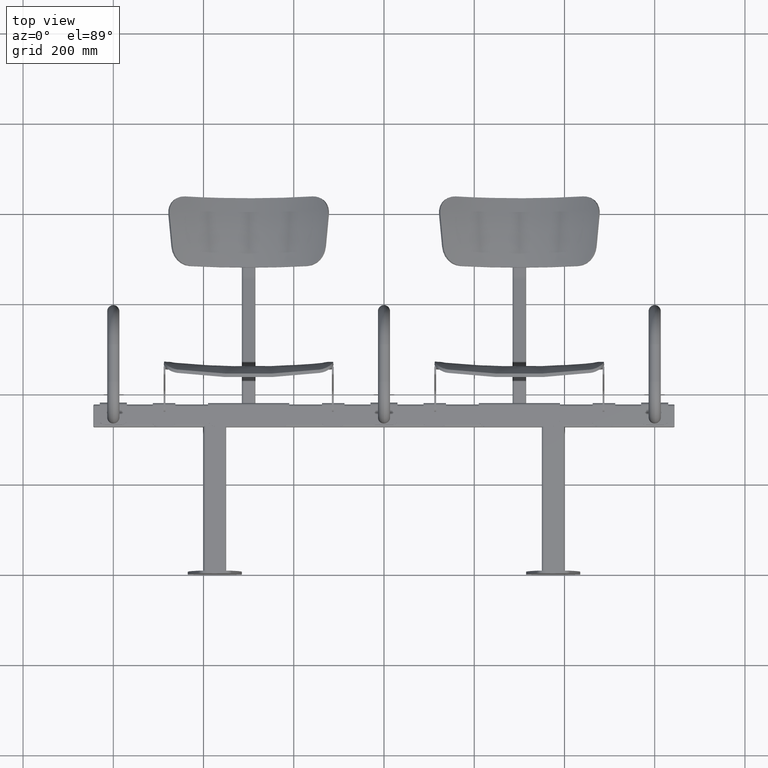
[diagram: clean part render]
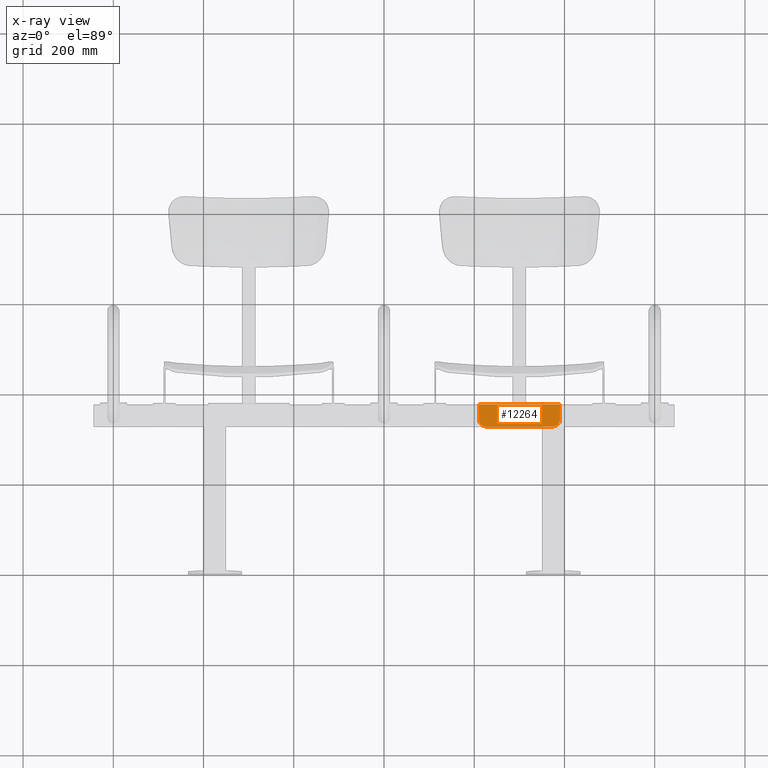
[diagram: x-ray — body ghosted, one internal face saturated and labeled with its STEP entity id]
A machine part, top view, then the same camera in x-ray: the body is ghosted and one INTERNAL B-rep face — a face not visible from any outside direction — is saturated and labeled: STEP entity #12264.
In plain terms, the highlighted planar face has unit normal (0, 0, 1).
Its self-contained STEP definition (entity closure, byte-faithful):
#73 = EDGE_LOOP ( 'NONE', ( #11106, #11097, #11098, #11101, #11102, #11099 ) ) ;
#318 = CARTESIAN_POINT ( 'NONE',  ( 90.00000000000000000, 14.99999999999999800, 0.0000000000000000000 ) ) ;
#332 = CARTESIAN_POINT ( 'NONE',  ( 90.00000000000000000, 49.00000000000000000, 0.0000000000000000000 ) ) ;
#351 = CARTESIAN_POINT ( 'NONE',  ( -90.00000000000000000, 49.00000000000000000, 0.0000000000000000000 ) ) ;
#353 = CARTESIAN_POINT ( 'NONE',  ( -74.99999999999992900, 0.0000000000000000000, 0.0000000000000000000 ) ) ;
#356 = CARTESIAN_POINT ( 'NONE',  ( -90.00000000000000000, 14.99999999999999800, 0.0000000000000000000 ) ) ;
#427 = VERTEX_POINT ( 'NONE', #318 ) ;
#441 = VERTEX_POINT ( 'NONE', #332 ) ;
#460 = VERTEX_POINT ( 'NONE', #351 ) ;
#462 = VERTEX_POINT ( 'NONE', #353 ) ;
#465 = VERTEX_POINT ( 'NONE', #356 ) ;
#5024 = FACE_OUTER_BOUND ( 'NONE', #73, .T. ) ;
#7894 = VERTEX_POINT ( 'NONE', #16534 ) ;
#10603 = AXIS2_PLACEMENT_3D ( 'NONE', #17709, #17714, #17715 ) ;
#11097 = ORIENTED_EDGE ( 'NONE', *, *, #12456, .T. ) ;
#11098 = ORIENTED_EDGE ( 'NONE', *, *, #12452, .T. ) ;
#11099 = ORIENTED_EDGE ( 'NONE', *, *, #12468, .F. ) ;
#11101 = ORIENTED_EDGE ( 'NONE', *, *, #12462, .T. ) ;
#11102 = ORIENTED_EDGE ( 'NONE', *, *, #12463, .T. ) ;
#11106 = ORIENTED_EDGE ( 'NONE', *, *, #12455, .F. ) ;
#12264 = ADVANCED_FACE ( 'NONE', ( #5024 ), #17707, .F. ) ;
#12452 = EDGE_CURVE ( 'NONE', #7894, #462, #18537, .T. ) ;
#12455 = EDGE_CURVE ( 'NONE', #427, #441, #18543, .T. ) ;
#12456 = EDGE_CURVE ( 'NONE', #427, #7894, #18545, .T. ) ;
#12462 = EDGE_CURVE ( 'NONE', #462, #465, #18555, .T. ) ;
#12463 = EDGE_CURVE ( 'NONE', #465, #460, #18556, .T. ) ;
#12468 = EDGE_CURVE ( 'NONE', #441, #460, #18563, .T. ) ;
#16534 = CARTESIAN_POINT ( 'NONE',  ( 75.00000000000000000, 0.0000000000000000000, 0.0000000000000000000 ) ) ;
#17707 = PLANE ( 'NONE',  #10603 ) ;
#17709 = CARTESIAN_POINT ( 'NONE',  ( 90.00000000000000000, 0.0000000000000000000, 0.0000000000000000000 ) ) ;
#17714 = DIRECTION ( 'NONE',  ( 0.0000000000000000000, 0.0000000000000000000, 1.000000000000000000 ) ) ;
#17715 = DIRECTION ( 'NONE',  ( 1.000000000000000000, 0.0000000000000000000, -0.0000000000000000000 ) ) ;
#17862 = AXIS2_PLACEMENT_3D ( 'NONE', #19006, #19007, #19008 ) ;
#17865 = AXIS2_PLACEMENT_3D ( 'NONE', #19019, #19020, #19021 ) ;
#18537 = LINE ( 'NONE', #18996, #18540 ) ;
#18540 = VECTOR ( 'NONE', #18998, 1000.000000000000000 ) ;
#18543 = LINE ( 'NONE', #19002, #18546 ) ;
#18545 = CIRCLE ( 'NONE', #17862, 15.00000000000000000 ) ;
#18546 = VECTOR ( 'NONE', #19003, 1000.000000000000000 ) ;
#18555 = CIRCLE ( 'NONE', #17865, 15.00000000000000000 ) ;
#18556 = LINE ( 'NONE', #19014, #18558 ) ;
#18558 = VECTOR ( 'NONE', #19015, 1000.000000000000000 ) ;
#18563 = LINE ( 'NONE', #19034, #18566 ) ;
#18566 = VECTOR ( 'NONE', #19036, 1000.000000000000000 ) ;
#18996 = CARTESIAN_POINT ( 'NONE',  ( 90.00000000000000000, 0.0000000000000000000, 0.0000000000000000000 ) ) ;
#18998 = DIRECTION ( 'NONE',  ( -1.000000000000000000, -0.0000000000000000000, -0.0000000000000000000 ) ) ;
#19002 = CARTESIAN_POINT ( 'NONE',  ( 90.00000000000000000, 0.0000000000000000000, 0.0000000000000000000 ) ) ;
#19003 = DIRECTION ( 'NONE',  ( 0.0000000000000000000, 1.000000000000000000, 0.0000000000000000000 ) ) ;
#19006 = CARTESIAN_POINT ( 'NONE',  ( 75.00000000000000000, 14.99999999999999800, 0.0000000000000000000 ) ) ;
#19007 = DIRECTION ( 'NONE',  ( -0.0000000000000000000, -0.0000000000000000000, -1.000000000000000000 ) ) ;
#19008 = DIRECTION ( 'NONE',  ( 1.000000000000000000, 0.0000000000000000000, 0.0000000000000000000 ) ) ;
#19014 = CARTESIAN_POINT ( 'NONE',  ( -90.00000000000000000, 0.0000000000000000000, 0.0000000000000000000 ) ) ;
#19015 = DIRECTION ( 'NONE',  ( 0.0000000000000000000, 1.000000000000000000, 0.0000000000000000000 ) ) ;
#19019 = CARTESIAN_POINT ( 'NONE',  ( -75.00000000000000000, 14.99999999999999800, 0.0000000000000000000 ) ) ;
#19020 = DIRECTION ( 'NONE',  ( -0.0000000000000000000, -0.0000000000000000000, -1.000000000000000000 ) ) ;
#19021 = DIRECTION ( 'NONE',  ( 1.000000000000000000, 0.0000000000000000000, 0.0000000000000000000 ) ) ;
#19034 = CARTESIAN_POINT ( 'NONE',  ( 90.00000000000000000, 49.00000000000000000, 0.0000000000000000000 ) ) ;
#19036 = DIRECTION ( 'NONE',  ( -1.000000000000000000, -0.0000000000000000000, -0.0000000000000000000 ) ) ;